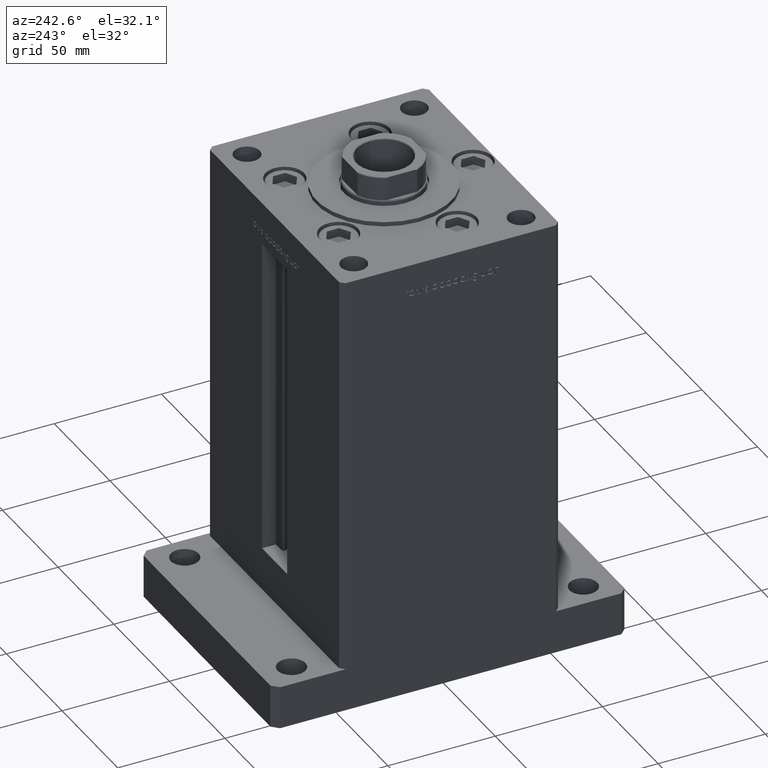
[diagram: clean part render]
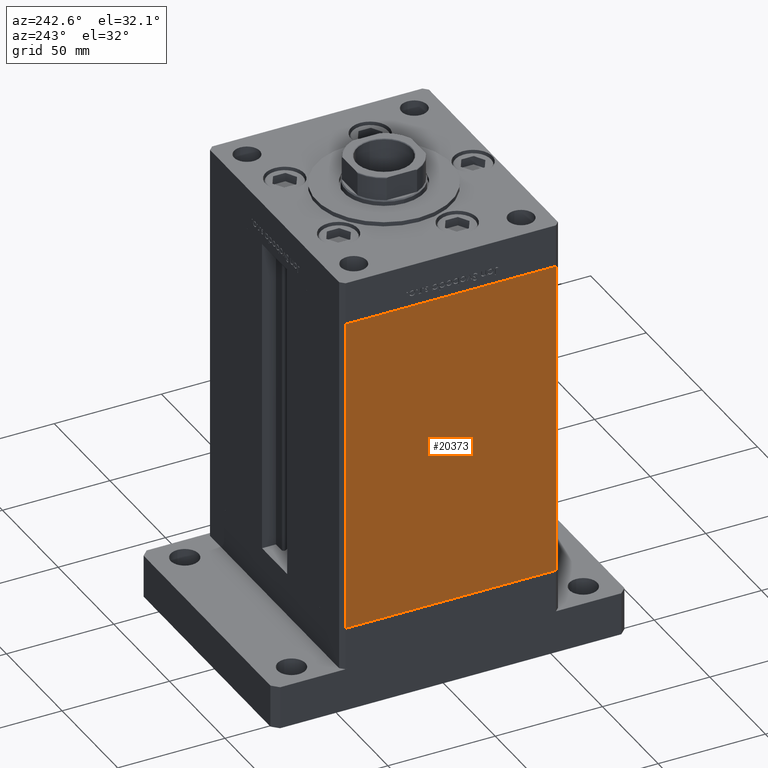
[diagram: same view with one face highlighted and labeled with its STEP entity id]
A machine part, auxiliary view. The second image highlights one B-rep face of the part: STEP entity #20373.
In plain terms, the highlighted planar face has unit normal (1, 0, 0).
Its self-contained STEP definition (entity closure, byte-faithful):
#1259 = CARTESIAN_POINT ( 'NONE',  ( -60.00000000000001421, 49.00000000000000000, 148.5000000000000000 ) ) ;
#1878 = EDGE_LOOP ( 'NONE', ( #4916, #37755, #11261, #17128 ) ) ;
#2433 = AXIS2_PLACEMENT_3D ( 'NONE', #18276, #9417, #50896 ) ;
#3510 = VERTEX_POINT ( 'NONE', #49333 ) ;
#4072 = DIRECTION ( 'NONE',  ( -0.000000000000000000, -0.000000000000000000, -1.000000000000000000 ) ) ;
#4916 = ORIENTED_EDGE ( 'NONE', *, *, #39719, .T. ) ;
#6066 = EDGE_CURVE ( 'NONE', #44560, #17486, #52590, .T. ) ;
#6848 = EDGE_CURVE ( 'NONE', #3510, #31042, #37122, .T. ) ;
#9180 = EDGE_CURVE ( 'NONE', #3510, #44560, #20479, .T. ) ;
#9417 = DIRECTION ( 'NONE',  ( 1.000000000000000000, 2.832201593431521726E-16, -0.000000000000000000 ) ) ;
#11261 = ORIENTED_EDGE ( 'NONE', *, *, #9180, .F. ) ;
#13920 = LINE ( 'NONE', #47590, #18960 ) ;
#15632 = CARTESIAN_POINT ( 'NONE',  ( -60.00000000000001421, 49.00000000000000000, 148.5000000000000000 ) ) ;
#17128 = ORIENTED_EDGE ( 'NONE', *, *, #6848, .T. ) ;
#17486 = VERTEX_POINT ( 'NONE', #41979 ) ;
#17613 = VECTOR ( 'NONE', #4072, 1000.000000000000000 ) ;
#18276 = CARTESIAN_POINT ( 'NONE',  ( -60.00000000000001421, 49.00000000000000000, 148.5000000000000000 ) ) ;
#18960 = VECTOR ( 'NONE', #25787, 1000.000000000000000 ) ;
#20373 = ADVANCED_FACE ( 'NONE', ( #37715 ), #51160, .F. ) ;
#20479 = LINE ( 'NONE', #15632, #48724 ) ;
#25787 = DIRECTION ( 'NONE',  ( 2.832201593431521726E-16, -1.000000000000000000, 0.000000000000000000 ) ) ;
#27854 = CARTESIAN_POINT ( 'NONE',  ( -60.00000000000001421, 49.00000000000000000, 0.000000000000000000 ) ) ;
#31042 = VERTEX_POINT ( 'NONE', #27854 ) ;
#34588 = CARTESIAN_POINT ( 'NONE',  ( -59.99999999999998579, -49.00000000000000000, 148.5000000000000000 ) ) ;
#36920 = DIRECTION ( 'NONE',  ( 2.832201593431521726E-16, -1.000000000000000000, 0.000000000000000000 ) ) ;
#37122 = LINE ( 'NONE', #1259, #37467 ) ;
#37467 = VECTOR ( 'NONE', #45752, 1000.000000000000000 ) ;
#37715 = FACE_OUTER_BOUND ( 'NONE', #1878, .T. ) ;
#37755 = ORIENTED_EDGE ( 'NONE', *, *, #6066, .F. ) ;
#39719 = EDGE_CURVE ( 'NONE', #31042, #17486, #13920, .T. ) ;
#41005 = CARTESIAN_POINT ( 'NONE',  ( -59.99999999999998579, -49.00000000000000000, 148.5000000000000000 ) ) ;
#41979 = CARTESIAN_POINT ( 'NONE',  ( -59.99999999999998579, -49.00000000000000000, 0.000000000000000000 ) ) ;
#44560 = VERTEX_POINT ( 'NONE', #34588 ) ;
#45752 = DIRECTION ( 'NONE',  ( -0.000000000000000000, -0.000000000000000000, -1.000000000000000000 ) ) ;
#47590 = CARTESIAN_POINT ( 'NONE',  ( -60.00000000000001421, 49.00000000000000000, 0.000000000000000000 ) ) ;
#48724 = VECTOR ( 'NONE', #36920, 1000.000000000000000 ) ;
#49333 = CARTESIAN_POINT ( 'NONE',  ( -60.00000000000001421, 49.00000000000000000, 148.5000000000000000 ) ) ;
#50896 = DIRECTION ( 'NONE',  ( -2.832201593431521726E-16, 1.000000000000000000, 0.000000000000000000 ) ) ;
#51160 = PLANE ( 'NONE',  #2433 ) ;
#52590 = LINE ( 'NONE', #41005, #17613 ) ;